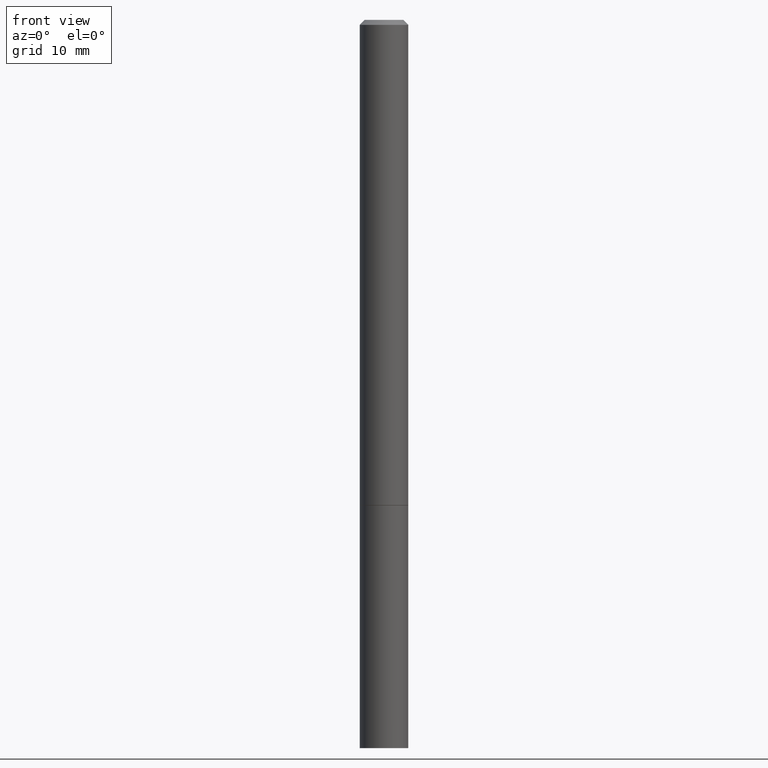
[diagram: clean part render]
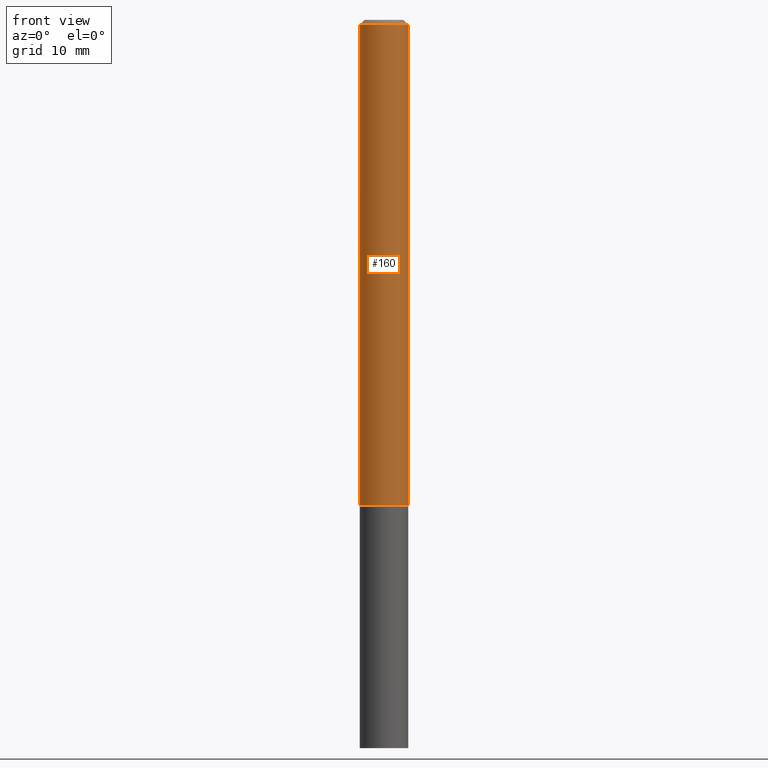
[diagram: same view with one face highlighted and labeled with its STEP entity id]
A machine part, front view. The second image highlights one B-rep face of the part: STEP entity #160.
In plain terms, the highlighted cylindrical surface (edge-blend (fillet) strip) has radius 2.5006 mm, axis along (-0, 0, 1).
Its self-contained STEP definition (entity closure, byte-faithful):
#15 = LINE ( 'NONE', #75, #28 ) ;
#16 = VERTEX_POINT ( 'NONE', #244 ) ;
#21 = DIRECTION ( 'NONE',  ( 1.000000000000000000, -6.982962677686266711E-15, 4.876176775795936353E-29 ) ) ;
#28 = VECTOR ( 'NONE', #74, 39.37007874015748143 ) ;
#40 = DIRECTION ( 'NONE',  ( -2.445468806185136877E-29, 3.491481338843145188E-15, 1.000000000000000000 ) ) ;
#58 = VERTEX_POINT ( 'NONE', #92 ) ;
#67 = CYLINDRICAL_SURFACE ( 'NONE', #183, 0.09844999999999987095 ) ;
#74 = DIRECTION ( 'NONE',  ( -2.445468806185136877E-29, 3.491481338843145188E-15, 1.000000000000000000 ) ) ;
#75 = CARTESIAN_POINT ( 'NONE',  ( -0.09844999999999987095, 6.995293233558177160E-16, -4.842691596355948437E-30 ) ) ;
#78 = CARTESIAN_POINT ( 'NONE',  ( 0.000000000000000000, 0.000000000000000000, 0.000000000000000000 ) ) ;
#83 = EDGE_LOOP ( 'NONE', ( #260, #196, #278, #238 ) ) ;
#92 = CARTESIAN_POINT ( 'NONE',  ( 0.09844999999999973217, -7.452456546574684343E-16, -0.02000000000000002470 ) ) ;
#110 = DIRECTION ( 'NONE',  ( 1.000000000000000000, -6.982962677686266711E-15, 0.000000000000000000 ) ) ;
#128 = VERTEX_POINT ( 'NONE', #256 ) ;
#142 = DIRECTION ( 'NONE',  ( -2.445468806185136597E-29, 3.491481338843145583E-15, 1.000000000000000000 ) ) ;
#159 = CARTESIAN_POINT ( 'NONE',  ( -0.09844999999999973217, 6.176430488413481772E-16, -0.02000000000000002470 ) ) ;
#160 = ADVANCED_FACE ( 'NONE', ( #317 ), #67, .T. ) ;
#171 = VECTOR ( 'NONE', #40, 39.37007874015748143 ) ;
#181 = CARTESIAN_POINT ( 'NONE',  ( 4.811459876169255671E-29, -6.869489534173887122E-15, -1.967499999999999805 ) ) ;
#183 = AXIS2_PLACEMENT_3D ( 'NONE', #78, #353, #21 ) ;
#196 = ORIENTED_EDGE ( 'NONE', *, *, #274, .T. ) ;
#208 = EDGE_CURVE ( 'NONE', #288, #58, #242, .T. ) ;
#225 = CARTESIAN_POINT ( 'NONE',  ( 0.09844999999999987095, -6.874726756182120670E-16, 4.800596035771092908E-30 ) ) ;
#238 = ORIENTED_EDGE ( 'NONE', *, *, #208, .F. ) ;
#242 = CIRCLE ( 'NONE', #342, 0.09844999999999973217 ) ;
#244 = CARTESIAN_POINT ( 'NONE',  ( -0.09844999999999998197, -2.770130257119553156E-15, -1.967499999999999805 ) ) ;
#256 = CARTESIAN_POINT ( 'NONE',  ( 0.09844999999999999585, -7.556962209792099682E-15, -1.967499999999999805 ) ) ;
#260 = ORIENTED_EDGE ( 'NONE', *, *, #339, .F. ) ;
#274 = EDGE_CURVE ( 'NONE', #16, #128, #348, .T. ) ;
#278 = ORIENTED_EDGE ( 'NONE', *, *, #328, .T. ) ;
#288 = VERTEX_POINT ( 'NONE', #159 ) ;
#291 = DIRECTION ( 'NONE',  ( -2.445468806185136597E-29, 3.491481338843145583E-15, 1.000000000000000000 ) ) ;
#298 = AXIS2_PLACEMENT_3D ( 'NONE', #181, #291, #331 ) ;
#317 = FACE_OUTER_BOUND ( 'NONE', #83, .T. ) ;
#324 = CARTESIAN_POINT ( 'NONE',  ( 4.890937612370279289E-31, -6.982962677686299005E-17, -0.02000000000000002470 ) ) ;
#328 = EDGE_CURVE ( 'NONE', #128, #58, #355, .T. ) ;
#331 = DIRECTION ( 'NONE',  ( 1.000000000000000000, -6.982962677686265922E-15, 0.000000000000000000 ) ) ;
#339 = EDGE_CURVE ( 'NONE', #16, #288, #15, .T. ) ;
#342 = AXIS2_PLACEMENT_3D ( 'NONE', #324, #142, #110 ) ;
#348 = CIRCLE ( 'NONE', #298, 0.09844999999999999585 ) ;
#353 = DIRECTION ( 'NONE',  ( -2.445468806185136597E-29, 3.491481338843145583E-15, 1.000000000000000000 ) ) ;
#355 = LINE ( 'NONE', #225, #171 ) ;